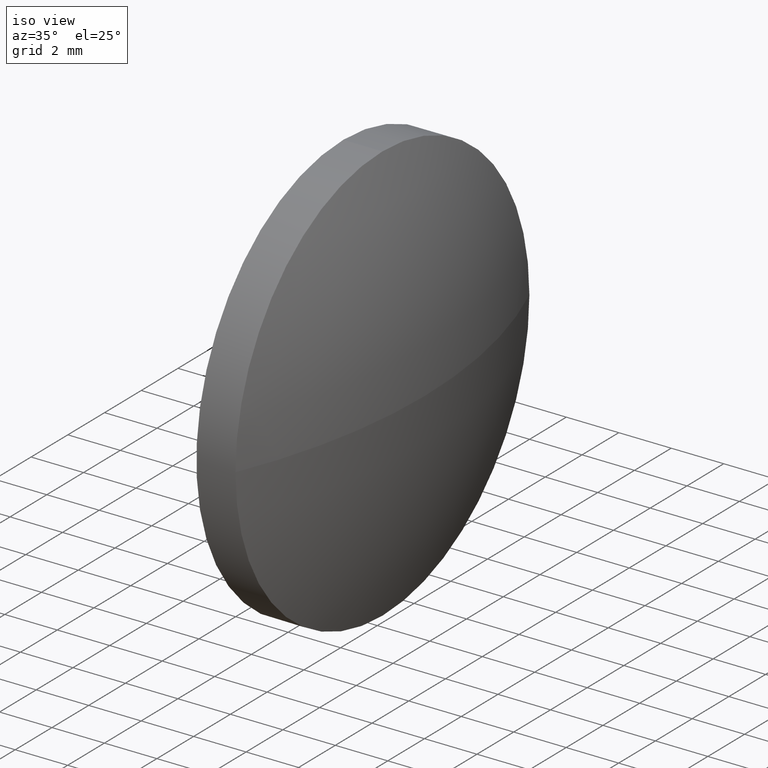
[diagram: clean part render]
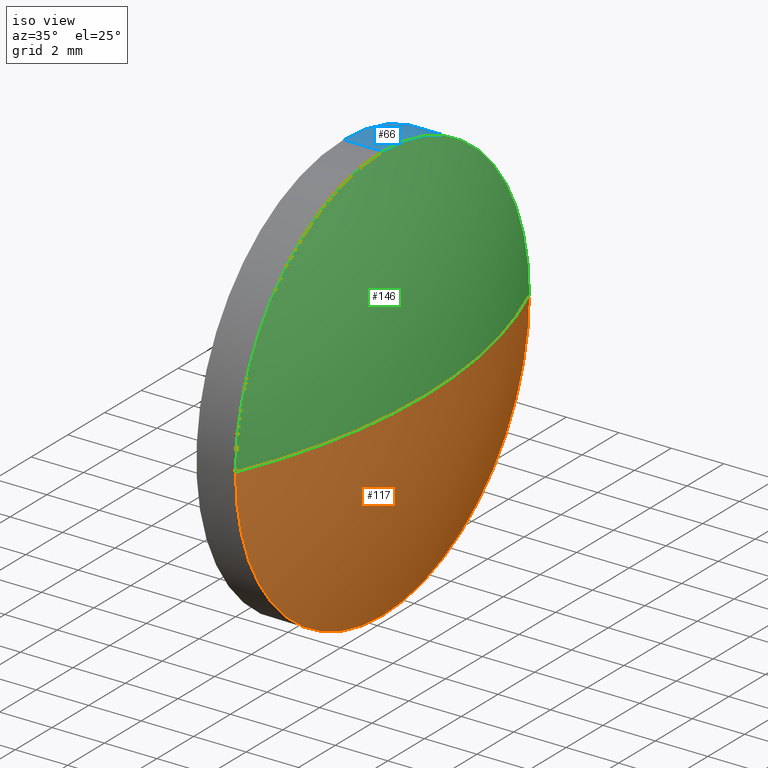
[diagram: same view with three faces highlighted in distinct colors, each labeled with its STEP entity id]
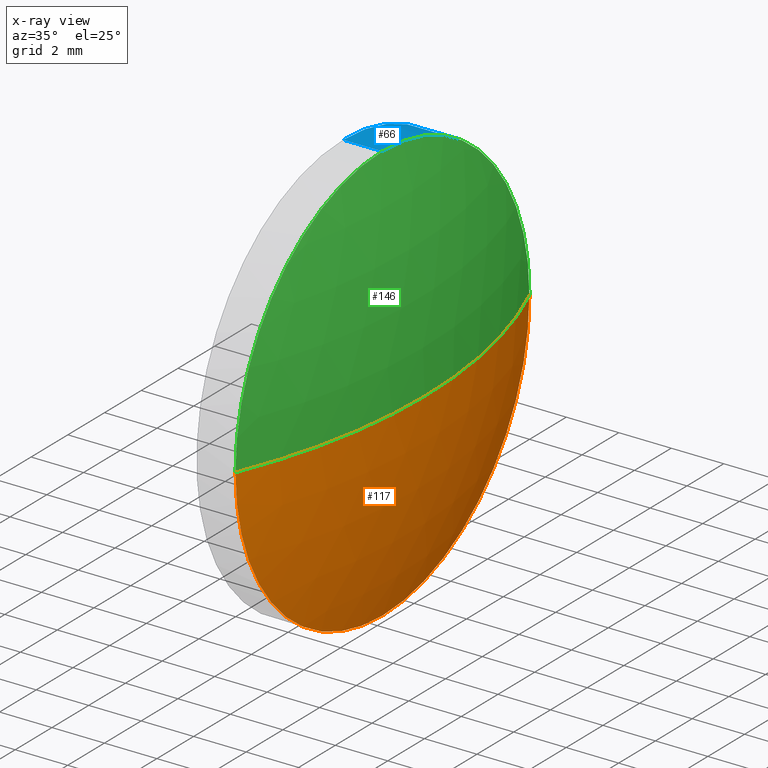
[diagram: x-ray of the same camera — body ghosted, the three highlighted faces saturated]
A machine part, iso view with three faces highlighted in distinct colors.
The next image is the same camera in x-ray (body ghosted, the three faces saturated) — at least one of them is partly hidden behind the body in this view.
Their STEP definitions:

[orange] entity #117 — the highlighted spherical surface has radius 20.6808 mm.
#6 = VERTEX_POINT ( 'NONE', #27 ) ;
#7 = AXIS2_PLACEMENT_3D ( 'NONE', #14, #127, #86 ) ;
#9 = CARTESIAN_POINT ( 'NONE',  ( 538.1372096364605100, 114.0833661660866900, 0.0000000000000000000 ) ) ;
#10 = AXIS2_PLACEMENT_3D ( 'NONE', #12, #122, #57 ) ;
#12 = CARTESIAN_POINT ( 'NONE',  ( 538.1372096364605100, 122.0833661660866600, 0.0000000000000000000 ) ) ;
#13 = CARTESIAN_POINT ( 'NONE',  ( 538.1372096364605100, 122.0833661660866600, 0.0000000000000000000 ) ) ;
#14 = CARTESIAN_POINT ( 'NONE',  ( 519.0664332389450200, 122.0833661660867100, 0.0000000000000000000 ) ) ;
#17 = ORIENTED_EDGE ( 'NONE', *, *, #53, .T. ) ;
#19 = CIRCLE ( 'NONE', #159, 20.68077639751542300 ) ;
#22 = EDGE_LOOP ( 'NONE', ( #132, #17, #158, #98 ) ) ;
#26 = DIRECTION ( 'NONE',  ( -1.000000000000000000, 0.0000000000000000000, 0.0000000000000000000 ) ) ;
#27 = CARTESIAN_POINT ( 'NONE',  ( 539.7472096364605200, 122.0833661660867100, 0.0000000000000000000 ) ) ;
#30 = CARTESIAN_POINT ( 'NONE',  ( 538.1372096364605100, 130.0833661660866500, 9.797174393178766500E-016 ) ) ;
#33 = CARTESIAN_POINT ( 'NONE',  ( 538.1372096364605100, 122.0833661660866600, -7.999999999999992900 ) ) ;
#37 = EDGE_CURVE ( 'NONE', #138, #180, #40, .T. ) ;
#40 = CIRCLE ( 'NONE', #10, 7.999999999999992900 ) ;
#43 = CIRCLE ( 'NONE', #82, 7.999999999999992900 ) ;
#45 = DIRECTION ( 'NONE',  ( 0.0000000000000000000, -1.224646799147353200E-016, 1.000000000000000000 ) ) ;
#48 = AXIS2_PLACEMENT_3D ( 'NONE', #137, #92, #26 ) ;
#53 = EDGE_CURVE ( 'NONE', #6, #64, #102, .T. ) ;
#57 = DIRECTION ( 'NONE',  ( 0.0000000000000000000, 0.0000000000000000000, 1.000000000000000000 ) ) ;
#62 = DIRECTION ( 'NONE',  ( 0.0000000000000000000, 0.0000000000000000000, 1.000000000000000000 ) ) ;
#64 = VERTEX_POINT ( 'NONE', #9 ) ;
#81 = CARTESIAN_POINT ( 'NONE',  ( 519.0664332389450200, 122.0833661660867100, 0.0000000000000000000 ) ) ;
#82 = AXIS2_PLACEMENT_3D ( 'NONE', #13, #107, #62 ) ;
#86 = DIRECTION ( 'NONE',  ( 0.0000000000000000000, -1.000000000000000000, 0.0000000000000000000 ) ) ;
#88 = EDGE_CURVE ( 'NONE', #6, #138, #19, .T. ) ;
#92 = DIRECTION ( 'NONE',  ( 0.0000000000000000000, 0.0000000000000000000, -1.000000000000000000 ) ) ;
#98 = ORIENTED_EDGE ( 'NONE', *, *, #37, .F. ) ;
#99 = FACE_OUTER_BOUND ( 'NONE', #22, .T. ) ;
#102 = CIRCLE ( 'NONE', #48, 20.68077639751542300 ) ;
#107 = DIRECTION ( 'NONE',  ( -1.000000000000000000, -0.0000000000000000000, -0.0000000000000000000 ) ) ;
#117 = ADVANCED_FACE ( 'NONE', ( #99 ), #135, .T. ) ;
#119 = EDGE_CURVE ( 'NONE', #180, #64, #43, .T. ) ;
#122 = DIRECTION ( 'NONE',  ( -1.000000000000000000, -0.0000000000000000000, -0.0000000000000000000 ) ) ;
#127 = DIRECTION ( 'NONE',  ( 0.0000000000000000000, 0.0000000000000000000, 1.000000000000000000 ) ) ;
#132 = ORIENTED_EDGE ( 'NONE', *, *, #88, .F. ) ;
#135 = SPHERICAL_SURFACE ( 'NONE', #7, 20.68077639751541600 ) ;
#137 = CARTESIAN_POINT ( 'NONE',  ( 519.0664332389450200, 122.0833661660867100, 0.0000000000000000000 ) ) ;
#138 = VERTEX_POINT ( 'NONE', #30 ) ;
#158 = ORIENTED_EDGE ( 'NONE', *, *, #119, .F. ) ;
#159 = AXIS2_PLACEMENT_3D ( 'NONE', #81, #45, #183 ) ;
#180 = VERTEX_POINT ( 'NONE', #33 ) ;
#183 = DIRECTION ( 'NONE',  ( 0.0000000000000000000, -1.000000000000000000, -1.224646799147352700E-016 ) ) ;

[blue] entity #66 — the highlighted cylindrical surface (partial cylindrical patch) has radius 8 mm, axis along (-1, -0, -0).
#2 = VECTOR ( 'NONE', #83, 1000.000000000000000 ) ;
#3 = AXIS2_PLACEMENT_3D ( 'NONE', #84, #75, #16 ) ;
#4 = CIRCLE ( 'NONE', #74, 7.999999999999992900 ) ;
#8 = CYLINDRICAL_SURFACE ( 'NONE', #182, 7.999999999999992900 ) ;
#10 = AXIS2_PLACEMENT_3D ( 'NONE', #12, #122, #57 ) ;
#12 = CARTESIAN_POINT ( 'NONE',  ( 538.1372096364605100, 122.0833661660866600, 0.0000000000000000000 ) ) ;
#16 = DIRECTION ( 'NONE',  ( 0.0000000000000000000, 0.0000000000000000000, 1.000000000000000000 ) ) ;
#24 = CIRCLE ( 'NONE', #3, 7.999999999999992900 ) ;
#25 = VERTEX_POINT ( 'NONE', #153 ) ;
#30 = CARTESIAN_POINT ( 'NONE',  ( 538.1372096364605100, 130.0833661660866500, 9.797174393178766500E-016 ) ) ;
#33 = CARTESIAN_POINT ( 'NONE',  ( 538.1372096364605100, 122.0833661660866600, -7.999999999999992900 ) ) ;
#37 = EDGE_CURVE ( 'NONE', #138, #180, #40, .T. ) ;
#38 = EDGE_CURVE ( 'NONE', #166, #133, #56, .T. ) ;
#39 = LINE ( 'NONE', #143, #2 ) ;
#40 = CIRCLE ( 'NONE', #10, 7.999999999999992900 ) ;
#52 = ORIENTED_EDGE ( 'NONE', *, *, #78, .F. ) ;
#56 = LINE ( 'NONE', #169, #85 ) ;
#57 = DIRECTION ( 'NONE',  ( 0.0000000000000000000, 0.0000000000000000000, 1.000000000000000000 ) ) ;
#60 = DIRECTION ( 'NONE',  ( -1.000000000000000000, -0.0000000000000000000, -0.0000000000000000000 ) ) ;
#66 = ADVANCED_FACE ( 'NONE', ( #69 ), #8, .T. ) ;
#69 = FACE_OUTER_BOUND ( 'NONE', #176, .T. ) ;
#71 = CARTESIAN_POINT ( 'NONE',  ( 536.6472096364605000, 122.0833661660866600, 7.999999999999992900 ) ) ;
#74 = AXIS2_PLACEMENT_3D ( 'NONE', #109, #60, #157 ) ;
#75 = DIRECTION ( 'NONE',  ( -1.000000000000000000, -0.0000000000000000000, -0.0000000000000000000 ) ) ;
#78 = EDGE_CURVE ( 'NONE', #133, #25, #24, .T. ) ;
#83 = DIRECTION ( 'NONE',  ( -1.000000000000000000, -0.0000000000000000000, -0.0000000000000000000 ) ) ;
#84 = CARTESIAN_POINT ( 'NONE',  ( 536.6472096364605000, 122.0833661660866600, 0.0000000000000000000 ) ) ;
#85 = VECTOR ( 'NONE', #167, 1000.000000000000000 ) ;
#87 = CARTESIAN_POINT ( 'NONE',  ( 538.1372096364605100, 122.0833661660866600, 7.999999999999992900 ) ) ;
#89 = ORIENTED_EDGE ( 'NONE', *, *, #105, .T. ) ;
#94 = DIRECTION ( 'NONE',  ( -1.000000000000000000, -0.0000000000000000000, -0.0000000000000000000 ) ) ;
#103 = DIRECTION ( 'NONE',  ( 0.0000000000000000000, 0.0000000000000000000, 1.000000000000000000 ) ) ;
#105 = EDGE_CURVE ( 'NONE', #180, #25, #39, .T. ) ;
#108 = EDGE_CURVE ( 'NONE', #166, #138, #4, .T. ) ;
#109 = CARTESIAN_POINT ( 'NONE',  ( 538.1372096364605100, 122.0833661660866600, 0.0000000000000000000 ) ) ;
#121 = ORIENTED_EDGE ( 'NONE', *, *, #38, .F. ) ;
#122 = DIRECTION ( 'NONE',  ( -1.000000000000000000, -0.0000000000000000000, -0.0000000000000000000 ) ) ;
#130 = ORIENTED_EDGE ( 'NONE', *, *, #37, .T. ) ;
#133 = VERTEX_POINT ( 'NONE', #71 ) ;
#136 = ORIENTED_EDGE ( 'NONE', *, *, #108, .T. ) ;
#138 = VERTEX_POINT ( 'NONE', #30 ) ;
#143 = CARTESIAN_POINT ( 'NONE',  ( 534.7243929316149400, 122.0833661660866600, -7.999999999999992900 ) ) ;
#153 = CARTESIAN_POINT ( 'NONE',  ( 536.6472096364605000, 122.0833661660866600, -7.999999999999992900 ) ) ;
#157 = DIRECTION ( 'NONE',  ( 0.0000000000000000000, 0.0000000000000000000, 1.000000000000000000 ) ) ;
#166 = VERTEX_POINT ( 'NONE', #87 ) ;
#167 = DIRECTION ( 'NONE',  ( -1.000000000000000000, -0.0000000000000000000, -0.0000000000000000000 ) ) ;
#169 = CARTESIAN_POINT ( 'NONE',  ( 534.7243929316149400, 122.0833661660866600, 7.999999999999992900 ) ) ;
#176 = EDGE_LOOP ( 'NONE', ( #130, #89, #52, #121, #136 ) ) ;
#178 = CARTESIAN_POINT ( 'NONE',  ( 534.7243929316149400, 122.0833661660866600, 0.0000000000000000000 ) ) ;
#180 = VERTEX_POINT ( 'NONE', #33 ) ;
#182 = AXIS2_PLACEMENT_3D ( 'NONE', #178, #94, #103 ) ;

[green] entity #146 — the highlighted spherical surface has radius 20.6808 mm.
#4 = CIRCLE ( 'NONE', #74, 7.999999999999992900 ) ;
#6 = VERTEX_POINT ( 'NONE', #27 ) ;
#9 = CARTESIAN_POINT ( 'NONE',  ( 538.1372096364605100, 114.0833661660866900, 0.0000000000000000000 ) ) ;
#19 = CIRCLE ( 'NONE', #159, 20.68077639751542300 ) ;
#26 = DIRECTION ( 'NONE',  ( -1.000000000000000000, 0.0000000000000000000, 0.0000000000000000000 ) ) ;
#27 = CARTESIAN_POINT ( 'NONE',  ( 539.7472096364605200, 122.0833661660867100, 0.0000000000000000000 ) ) ;
#30 = CARTESIAN_POINT ( 'NONE',  ( 538.1372096364605100, 130.0833661660866500, 9.797174393178766500E-016 ) ) ;
#44 = DIRECTION ( 'NONE',  ( 0.0000000000000000000, 0.0000000000000000000, 1.000000000000000000 ) ) ;
#45 = DIRECTION ( 'NONE',  ( 0.0000000000000000000, -1.224646799147353200E-016, 1.000000000000000000 ) ) ;
#47 = ORIENTED_EDGE ( 'NONE', *, *, #65, .F. ) ;
#48 = AXIS2_PLACEMENT_3D ( 'NONE', #137, #92, #26 ) ;
#49 = DIRECTION ( 'NONE',  ( -1.000000000000000000, -0.0000000000000000000, -0.0000000000000000000 ) ) ;
#53 = EDGE_CURVE ( 'NONE', #6, #64, #102, .T. ) ;
#54 = EDGE_LOOP ( 'NONE', ( #79, #104, #76, #47 ) ) ;
#60 = DIRECTION ( 'NONE',  ( -1.000000000000000000, -0.0000000000000000000, -0.0000000000000000000 ) ) ;
#64 = VERTEX_POINT ( 'NONE', #9 ) ;
#65 = EDGE_CURVE ( 'NONE', #64, #166, #91, .T. ) ;
#74 = AXIS2_PLACEMENT_3D ( 'NONE', #109, #60, #157 ) ;
#76 = ORIENTED_EDGE ( 'NONE', *, *, #108, .F. ) ;
#79 = ORIENTED_EDGE ( 'NONE', *, *, #53, .F. ) ;
#80 = AXIS2_PLACEMENT_3D ( 'NONE', #96, #44, #113 ) ;
#81 = CARTESIAN_POINT ( 'NONE',  ( 519.0664332389450200, 122.0833661660867100, 0.0000000000000000000 ) ) ;
#87 = CARTESIAN_POINT ( 'NONE',  ( 538.1372096364605100, 122.0833661660866600, 7.999999999999992900 ) ) ;
#88 = EDGE_CURVE ( 'NONE', #6, #138, #19, .T. ) ;
#91 = CIRCLE ( 'NONE', #171, 7.999999999999992900 ) ;
#92 = DIRECTION ( 'NONE',  ( 0.0000000000000000000, 0.0000000000000000000, -1.000000000000000000 ) ) ;
#96 = CARTESIAN_POINT ( 'NONE',  ( 519.0664332389450200, 122.0833661660867100, 0.0000000000000000000 ) ) ;
#102 = CIRCLE ( 'NONE', #48, 20.68077639751542300 ) ;
#104 = ORIENTED_EDGE ( 'NONE', *, *, #88, .T. ) ;
#108 = EDGE_CURVE ( 'NONE', #166, #138, #4, .T. ) ;
#109 = CARTESIAN_POINT ( 'NONE',  ( 538.1372096364605100, 122.0833661660866600, 0.0000000000000000000 ) ) ;
#113 = DIRECTION ( 'NONE',  ( 0.0000000000000000000, -1.000000000000000000, 0.0000000000000000000 ) ) ;
#125 = SPHERICAL_SURFACE ( 'NONE', #80, 20.68077639751541600 ) ;
#137 = CARTESIAN_POINT ( 'NONE',  ( 519.0664332389450200, 122.0833661660867100, 0.0000000000000000000 ) ) ;
#138 = VERTEX_POINT ( 'NONE', #30 ) ;
#142 = CARTESIAN_POINT ( 'NONE',  ( 538.1372096364605100, 122.0833661660866600, 0.0000000000000000000 ) ) ;
#146 = ADVANCED_FACE ( 'NONE', ( #151 ), #125, .T. ) ;
#151 = FACE_OUTER_BOUND ( 'NONE', #54, .T. ) ;
#157 = DIRECTION ( 'NONE',  ( 0.0000000000000000000, 0.0000000000000000000, 1.000000000000000000 ) ) ;
#159 = AXIS2_PLACEMENT_3D ( 'NONE', #81, #45, #183 ) ;
#166 = VERTEX_POINT ( 'NONE', #87 ) ;
#171 = AXIS2_PLACEMENT_3D ( 'NONE', #142, #49, #173 ) ;
#173 = DIRECTION ( 'NONE',  ( 0.0000000000000000000, 0.0000000000000000000, 1.000000000000000000 ) ) ;
#183 = DIRECTION ( 'NONE',  ( 0.0000000000000000000, -1.000000000000000000, -1.224646799147352700E-016 ) ) ;